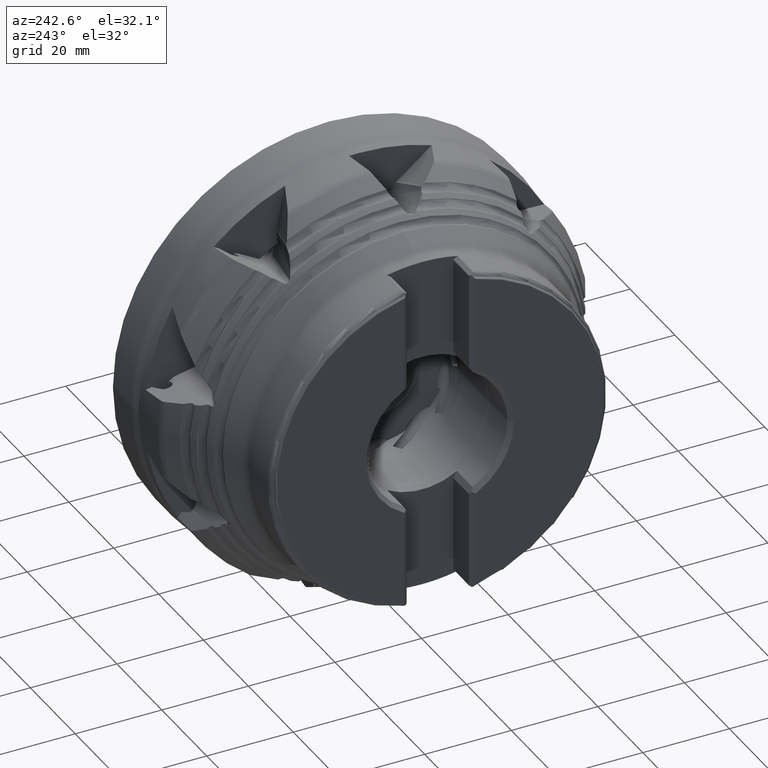
[diagram: clean part render]
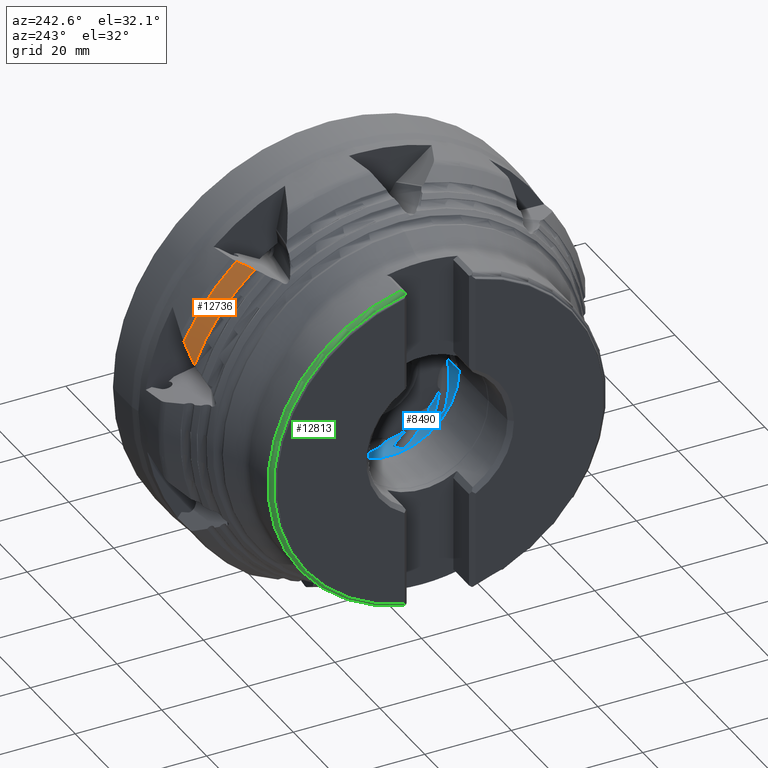
[diagram: same view with three faces highlighted in distinct colors, each labeled with its STEP entity id]
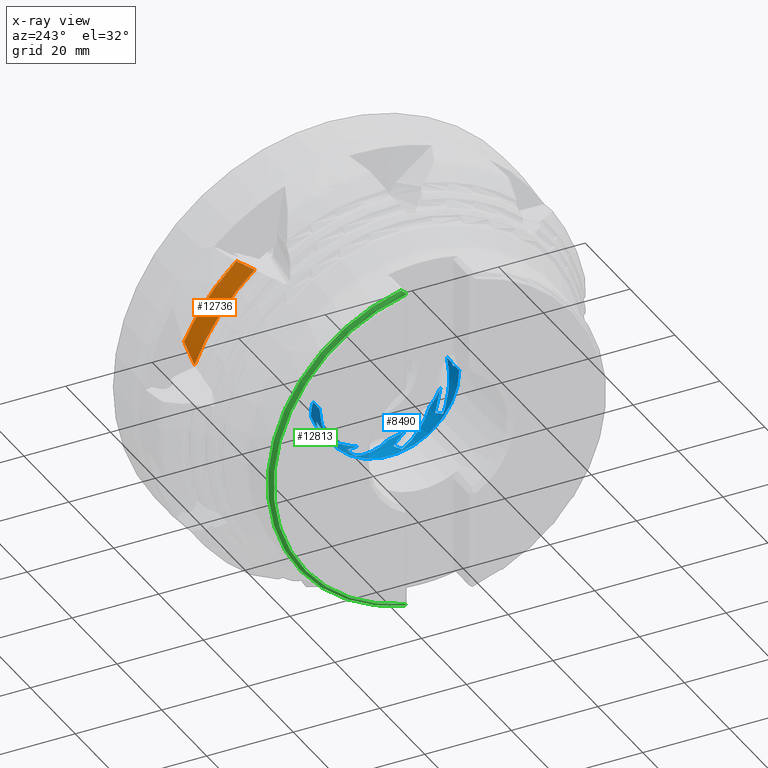
[diagram: x-ray of the same camera — body ghosted, the three highlighted faces saturated]
A machine part, auxiliary view with three faces highlighted in distinct colors.
The next image is the same camera in x-ray (body ghosted, the three faces saturated) — at least one of them is partly hidden behind the body in this view.
Their STEP definitions:

[orange] entity #12736 — the highlighted conical surface has half-angle 29.986 deg.
#2411 = CARTESIAN_POINT ( 'NONE',  ( -19.74999999999999600, 32.27830873143235400, 37.09632804884190400 ) ) ;
#2420 = CARTESIAN_POINT ( 'NONE',  ( -20.95608357414482000, 31.50575693865855700, 36.84602141440779400 ) ) ;
#2421 = CARTESIAN_POINT ( 'NONE',  ( -22.15960049143721700, 30.72996884605010600, 36.59342977770339900 ) ) ;
#2422 = CARTESIAN_POINT ( 'NONE',  ( -23.36015006379808400, 29.95043922566313600, 36.33819642054510300 ) ) ;
#2506 = CARTESIAN_POINT ( 'NONE',  ( -19.74999999999999600, 44.40297827474695000, 21.12823441751125800 ) ) ;
#2517 = CARTESIAN_POINT ( 'NONE',  ( -20.97494274066706400, 44.22609545373315100, 19.85490893478370100 ) ) ;
#2518 = CARTESIAN_POINT ( 'NONE',  ( -22.17961991986636500, 44.03104686750098300, 18.56544776923766100 ) ) ;
#2519 = CARTESIAN_POINT ( 'NONE',  ( -23.36015006379807300, 43.81435321734656400, 17.25676044493435800 ) ) ;
#2645 = B_SPLINE_CURVE_WITH_KNOTS ( 'NONE', 3,
 ( #2411, #2420, #2421, #2422 ),
 .UNSPECIFIED., .F., .F.,
 ( 4, 4 ),
 ( 2.411101941767327700E-007, 0.004362227295965006600 ),
 .UNSPECIFIED. ) ;
#2660 = B_SPLINE_CURVE_WITH_KNOTS ( 'NONE', 3,
 ( #2506, #2517, #2518, #2519 ),
 .UNSPECIFIED., .F., .F.,
 ( 4, 4 ),
 ( 2.898723007226078500E-007, 0.005326449244839337600 ),
 .UNSPECIFIED. ) ;
#4300 = CARTESIAN_POINT ( 'NONE',  ( -19.74999999999999600, 0.0000000000000000000, 0.0000000000000000000 ) ) ;
#4301 = DIRECTION ( 'NONE',  ( 1.000000000000000000, -0.0000000000000000000, -0.0000000000000000000 ) ) ;
#4302 = DIRECTION ( 'NONE',  ( 0.0000000000000000000, 0.0000000000000000000, -1.000000000000000000 ) ) ;
#4306 = CARTESIAN_POINT ( 'NONE',  ( -23.36015006379808100, 0.0000000000000000000, 0.0000000000000000000 ) ) ;
#4308 = DIRECTION ( 'NONE',  ( 1.000000000000000000, -0.0000000000000000000, -0.0000000000000000000 ) ) ;
#4309 = DIRECTION ( 'NONE',  ( 0.0000000000000000000, 0.0000000000000000000, -1.000000000000000000 ) ) ;
#5785 = FACE_OUTER_BOUND ( 'NONE', #14158, .T. ) ;
#5787 = CONICAL_SURFACE ( 'NONE', #22617, 49.17343560571049500, 0.5233591296218788000 ) ;
#6610 = DIRECTION ( 'NONE',  ( 0.0000000000000000000, 0.0000000000000000000, -1.000000000000000000 ) ) ;
#6621 = DIRECTION ( 'NONE',  ( 1.000000000000000000, -0.0000000000000000000, -0.0000000000000000000 ) ) ;
#6622 = CARTESIAN_POINT ( 'NONE',  ( -19.74999999999999600, 0.0000000000000000000, 0.0000000000000000000 ) ) ;
#7693 = CARTESIAN_POINT ( 'NONE',  ( -19.74999999999999600, 44.40297827474695000, 21.12823441751125800 ) ) ;
#7695 = CARTESIAN_POINT ( 'NONE',  ( -23.36015006379807300, 43.81435321734656400, 17.25676044493435800 ) ) ;
#7707 = CARTESIAN_POINT ( 'NONE',  ( -23.36015006379808400, 29.95043922566313600, 36.33819642054510300 ) ) ;
#7708 = CARTESIAN_POINT ( 'NONE',  ( -19.74999999999999600, 32.27830873143235400, 37.09632804884190400 ) ) ;
#9936 = EDGE_CURVE ( 'NONE', #14716, #14715, #2645, .T. ) ;
#9963 = EDGE_CURVE ( 'NONE', #14701, #14703, #2660, .T. ) ;
#10358 = EDGE_CURVE ( 'NONE', #14701, #14716, #21394, .T. ) ;
#10360 = EDGE_CURVE ( 'NONE', #14703, #14715, #21396, .T. ) ;
#12507 = ORIENTED_EDGE ( 'NONE', *, *, #10358, .F. ) ;
#12509 = ORIENTED_EDGE ( 'NONE', *, *, #9963, .T. ) ;
#12510 = ORIENTED_EDGE ( 'NONE', *, *, #10360, .T. ) ;
#12511 = ORIENTED_EDGE ( 'NONE', *, *, #9936, .F. ) ;
#12736 = ADVANCED_FACE ( 'NONE', ( #5785 ), #5787, .T. ) ;
#14158 = EDGE_LOOP ( 'NONE', ( #12507, #12509, #12510, #12511 ) ) ;
#14701 = VERTEX_POINT ( 'NONE', #7693 ) ;
#14703 = VERTEX_POINT ( 'NONE', #7695 ) ;
#14715 = VERTEX_POINT ( 'NONE', #7707 ) ;
#14716 = VERTEX_POINT ( 'NONE', #7708 ) ;
#21394 = CIRCLE ( 'NONE', #22378, 49.17343560571049500 ) ;
#21396 = CIRCLE ( 'NONE', #22379, 47.09026787891801300 ) ;
#22378 = AXIS2_PLACEMENT_3D ( 'NONE', #4300, #4301, #4302 ) ;
#22379 = AXIS2_PLACEMENT_3D ( 'NONE', #4306, #4308, #4309 ) ;
#22617 = AXIS2_PLACEMENT_3D ( 'NONE', #6622, #6621, #6610 ) ;

[blue] entity #8490 — the highlighted cylindrical surface (partial cylindrical patch) has radius 16.15 mm, axis along (1, 0, -0).
#626 = ORIENTED_EDGE ( 'NONE', *, *, #9119, .T. ) ;
#639 = ORIENTED_EDGE ( 'NONE', *, *, #8956, .F. ) ;
#821 = ORIENTED_EDGE ( 'NONE', *, *, #8942, .F. ) ;
#887 = EDGE_LOOP ( 'NONE', ( #1155, #626, #22832, #23053, #23043, #23050, #23047, #23046, #22886, #23048, #22833, #888, #996, #1027, #898, #912, #953, #821, #1083, #923, #992, #1043, #639, #1049, #1053, #1052, #1041, #1042, #1078 ) ) ;
#888 = ORIENTED_EDGE ( 'NONE', *, *, #9122, .T. ) ;
#898 = ORIENTED_EDGE ( 'NONE', *, *, #9129, .F. ) ;
#912 = ORIENTED_EDGE ( 'NONE', *, *, #9125, .T. ) ;
#923 = ORIENTED_EDGE ( 'NONE', *, *, #9131, .T. ) ;
#953 = ORIENTED_EDGE ( 'NONE', *, *, #9128, .F. ) ;
#992 = ORIENTED_EDGE ( 'NONE', *, *, #9133, .F. ) ;
#996 = ORIENTED_EDGE ( 'NONE', *, *, #8941, .F. ) ;
#1027 = ORIENTED_EDGE ( 'NONE', *, *, #9127, .T. ) ;
#1041 = ORIENTED_EDGE ( 'NONE', *, *, #8999, .F. ) ;
#1042 = ORIENTED_EDGE ( 'NONE', *, *, #9000, .F. ) ;
#1043 = ORIENTED_EDGE ( 'NONE', *, *, #9130, .T. ) ;
#1049 = ORIENTED_EDGE ( 'NONE', *, *, #9134, .T. ) ;
#1052 = ORIENTED_EDGE ( 'NONE', *, *, #9132, .T. ) ;
#1053 = ORIENTED_EDGE ( 'NONE', *, *, #9136, .F. ) ;
#1078 = ORIENTED_EDGE ( 'NONE', *, *, #9137, .F. ) ;
#1083 = ORIENTED_EDGE ( 'NONE', *, *, #8950, .F. ) ;
#1155 = ORIENTED_EDGE ( 'NONE', *, *, #9030, .F. ) ;
#5311 = VERTEX_POINT ( 'NONE', #16342 ) ;
#5322 = VERTEX_POINT ( 'NONE', #16351 ) ;
#5346 = VERTEX_POINT ( 'NONE', #16376 ) ;
#5364 = VERTEX_POINT ( 'NONE', #16394 ) ;
#5370 = VERTEX_POINT ( 'NONE', #16400 ) ;
#5372 = VERTEX_POINT ( 'NONE', #16402 ) ;
#5386 = VERTEX_POINT ( 'NONE', #16416 ) ;
#5397 = VERTEX_POINT ( 'NONE', #16427 ) ;
#5409 = VERTEX_POINT ( 'NONE', #16439 ) ;
#5411 = VERTEX_POINT ( 'NONE', #16441 ) ;
#5412 = VERTEX_POINT ( 'NONE', #16442 ) ;
#5420 = VERTEX_POINT ( 'NONE', #16450 ) ;
#7440 = CARTESIAN_POINT ( 'NONE',  ( -22.81144578818080900, 16.14999999999999500, -1.765794352093071900E-014 ) ) ;
#7444 = CARTESIAN_POINT ( 'NONE',  ( -21.24512600909631400, -15.98869009165823000, -2.276903413171053300 ) ) ;
#7447 = CARTESIAN_POINT ( 'NONE',  ( -24.96707946596180600, 7.577054700796601600, -14.26221378542390800 ) ) ;
#7452 = CARTESIAN_POINT ( 'NONE',  ( -20.24999999999998900, -12.07082049057499500, -10.72929600133731200 ) ) ;
#7475 = CARTESIAN_POINT ( 'NONE',  ( -20.24999999999999300, 15.32725314716839700, -5.088989188690983500 ) ) ;
#7478 = CARTESIAN_POINT ( 'NONE',  ( -20.24999999999998900, 8.470217905347134000, -13.75056030261811900 ) ) ;
#7480 = CARTESIAN_POINT ( 'NONE',  ( -24.96707946596196900, -3.363213659217414400, -15.79592649648804300 ) ) ;
#7528 = CARTESIAN_POINT ( 'NONE',  ( -24.96707946596169900, -12.72979697012709900, -9.938549647677110200 ) ) ;
#7535 = CARTESIAN_POINT ( 'NONE',  ( -21.90506687844372300, 16.03124950238592600, -1.954875799699524500 ) ) ;
#7557 = CARTESIAN_POINT ( 'NONE',  ( -22.37756901393073900, -16.15000000000062700, -1.137000634528731400E-012 ) ) ;
#7558 = CARTESIAN_POINT ( 'NONE',  ( -24.34967625260729900, -13.71161249990569800, -8.533122678857360200 ) ) ;
#7560 = CARTESIAN_POINT ( 'NONE',  ( -21.54501924743165700, 0.08853445914855880000, -16.14975732478798400 ) ) ;
#7567 = CARTESIAN_POINT ( 'NONE',  ( -25.64904181246357200, 16.14999999999999500, 0.0000000000000000000 ) ) ;
#7578 = CARTESIAN_POINT ( 'NONE',  ( -22.77178321478155700, -16.14163960214308300, -0.5195872924985548400 ) ) ;
#7586 = CARTESIAN_POINT ( 'NONE',  ( -25.64904181246356500, -16.15000000000000200, 1.977804580622975200E-015 ) ) ;
#7587 = CARTESIAN_POINT ( 'NONE',  ( -24.07910900153575900, 5.440347136951486600, -15.20608835399372800 ) ) ;
#7589 = CARTESIAN_POINT ( 'NONE',  ( -24.96707946596242800, 14.97193495672469700, -6.055052737309930300 ) ) ;
#8490 = ADVANCED_FACE ( 'NONE', ( #15212 ), #15214, .F. ) ;
#8925 = EDGE_CURVE ( 'NONE', #14565, #14586, #17693, .T. ) ;
#8927 = EDGE_CURVE ( 'NONE', #14566, #14452, #17694, .T. ) ;
#8935 = EDGE_CURVE ( 'NONE', #14536, #14566, #17696, .T. ) ;
#8941 = EDGE_CURVE ( 'NONE', #14488, #14460, #17699, .T. ) ;
#8942 = EDGE_CURVE ( 'NONE', #14595, #14568, #17700, .T. ) ;
#8950 = EDGE_CURVE ( 'NONE', #14455, #14595, #17702, .T. ) ;
#8956 = EDGE_CURVE ( 'NONE', #14597, #14486, #17705, .T. ) ;
#8999 = EDGE_CURVE ( 'NONE', #14543, #14483, #17713, .T. ) ;
#9000 = EDGE_CURVE ( 'NONE', #14448, #14543, #17714, .T. ) ;
#9030 = EDGE_CURVE ( 'NONE', #14594, #14575, #15638, .T. ) ;
#9091 = EDGE_CURVE ( 'NONE', #14565, #5346, #15694, .T. ) ;
#9119 = EDGE_CURVE ( 'NONE', #14594, #5370, #15714, .T. ) ;
#9120 = EDGE_CURVE ( 'NONE', #5370, #14586, #21084, .T. ) ;
#9121 = EDGE_CURVE ( 'NONE', #14452, #5409, #17741, .T. ) ;
#9122 = EDGE_CURVE ( 'NONE', #5322, #14460, #15721, .T. ) ;
#9123 = EDGE_CURVE ( 'NONE', #5346, #5409, #15722, .T. ) ;
#9124 = EDGE_CURVE ( 'NONE', #14536, #5386, #21081, .T. ) ;
#9125 = EDGE_CURVE ( 'NONE', #5311, #5411, #15723, .T. ) ;
#9126 = EDGE_CURVE ( 'NONE', #5322, #5386, #17742, .T. ) ;
#9127 = EDGE_CURVE ( 'NONE', #14488, #5397, #21079, .T. ) ;
#9128 = EDGE_CURVE ( 'NONE', #14568, #5411, #17743, .T. ) ;
#9129 = EDGE_CURVE ( 'NONE', #5311, #5397, #17744, .T. ) ;
#9130 = EDGE_CURVE ( 'NONE', #5412, #14486, #15724, .T. ) ;
#9131 = EDGE_CURVE ( 'NONE', #14455, #5372, #21076, .T. ) ;
#9132 = EDGE_CURVE ( 'NONE', #5420, #14483, #15725, .T. ) ;
#9133 = EDGE_CURVE ( 'NONE', #5412, #5372, #17745, .T. ) ;
#9134 = EDGE_CURVE ( 'NONE', #14597, #5364, #21074, .T. ) ;
#9136 = EDGE_CURVE ( 'NONE', #5420, #5364, #17746, .T. ) ;
#9137 = EDGE_CURVE ( 'NONE', #14575, #14448, #15720, .T. ) ;
#10741 = AXIS2_PLACEMENT_3D ( 'NONE', #17453, #17452, #17441 ) ;
#10984 = AXIS2_PLACEMENT_3D ( 'NONE', #19151, #19152, #19153 ) ;
#11031 = AXIS2_PLACEMENT_3D ( 'NONE', #19460, #19468, #19469 ) ;
#11032 = AXIS2_PLACEMENT_3D ( 'NONE', #19464, #19465, #19466 ) ;
#11033 = AXIS2_PLACEMENT_3D ( 'NONE', #19474, #19475, #19476 ) ;
#11034 = AXIS2_PLACEMENT_3D ( 'NONE', #19503, #19504, #19505 ) ;
#11035 = AXIS2_PLACEMENT_3D ( 'NONE', #19510, #19511, #19512 ) ;
#14448 = VERTEX_POINT ( 'NONE', #7440 ) ;
#14452 = VERTEX_POINT ( 'NONE', #7444 ) ;
#14455 = VERTEX_POINT ( 'NONE', #7447 ) ;
#14460 = VERTEX_POINT ( 'NONE', #7452 ) ;
#14483 = VERTEX_POINT ( 'NONE', #7475 ) ;
#14486 = VERTEX_POINT ( 'NONE', #7478 ) ;
#14488 = VERTEX_POINT ( 'NONE', #7480 ) ;
#14536 = VERTEX_POINT ( 'NONE', #7528 ) ;
#14543 = VERTEX_POINT ( 'NONE', #7535 ) ;
#14565 = VERTEX_POINT ( 'NONE', #7557 ) ;
#14566 = VERTEX_POINT ( 'NONE', #7558 ) ;
#14568 = VERTEX_POINT ( 'NONE', #7560 ) ;
#14575 = VERTEX_POINT ( 'NONE', #7567 ) ;
#14586 = VERTEX_POINT ( 'NONE', #7578 ) ;
#14594 = VERTEX_POINT ( 'NONE', #7586 ) ;
#14595 = VERTEX_POINT ( 'NONE', #7587 ) ;
#14597 = VERTEX_POINT ( 'NONE', #7589 ) ;
#15212 = FACE_OUTER_BOUND ( 'NONE', #887, .T. ) ;
#15214 = CYLINDRICAL_SURFACE ( 'NONE', #10741, 16.14999999999999900 ) ;
#15638 = CIRCLE ( 'NONE', #10984, 16.14999999999999900 ) ;
#15692 = VECTOR ( 'NONE', #19364, 1000.000000000000000 ) ;
#15694 = LINE ( 'NONE', #19363, #15692 ) ;
#15714 = LINE ( 'NONE', #19454, #15718 ) ;
#15718 = VECTOR ( 'NONE', #19455, 1000.000000000000000 ) ;
#15720 = LINE ( 'NONE', #19536, #15726 ) ;
#15721 = CIRCLE ( 'NONE', #11032, 16.14999999999999900 ) ;
#15722 = CIRCLE ( 'NONE', #11031, 16.14999999999999900 ) ;
#15723 = CIRCLE ( 'NONE', #11033, 16.14999999999999900 ) ;
#15724 = CIRCLE ( 'NONE', #11034, 16.14999999999999900 ) ;
#15725 = CIRCLE ( 'NONE', #11035, 16.14999999999999900 ) ;
#15726 = VECTOR ( 'NONE', #19537, 1000.000000000000000 ) ;
#16342 = CARTESIAN_POINT ( 'NONE',  ( -20.24999999999998900, -6.655891195399533400, -14.71467337031307900 ) ) ;
#16351 = CARTESIAN_POINT ( 'NONE',  ( -20.24999999999998600, -14.55711818726212500, -6.993769375814494500 ) ) ;
#16376 = CARTESIAN_POINT ( 'NONE',  ( -20.24999999999998600, -16.15000000000000200, 1.977804580622975200E-015 ) ) ;
#16394 = CARTESIAN_POINT ( 'NONE',  ( -22.77178321478096700, 15.34588894177010200, -5.032513545620860300 ) ) ;
#16400 = CARTESIAN_POINT ( 'NONE',  ( -23.81271169119185800, -16.15000000000000200, 1.977804580622975200E-015 ) ) ;
#16402 = CARTESIAN_POINT ( 'NONE',  ( -22.77178321478157100, 8.520795595858931600, -13.71927630793952200 ) ) ;
#16416 = CARTESIAN_POINT ( 'NONE',  ( -22.77178321478166700, -12.03122904628232200, -10.77367289441685500 ) ) ;
#16427 = CARTESIAN_POINT ( 'NONE',  ( -22.77178321478139000, -2.291272707449191900, -15.98663721300067800 ) ) ;
#16439 = CARTESIAN_POINT ( 'NONE',  ( -20.24999999999998600, -16.14344349101064000, -0.4601437303111677300 ) ) ;
#16441 = CARTESIAN_POINT ( 'NONE',  ( -20.24999999999998900, -2.350126430372498000, -15.97809143049521600 ) ) ;
#16442 = CARTESIAN_POINT ( 'NONE',  ( -20.24999999999998900, 4.359701258781153200, -15.55041815946381700 ) ) ;
#16450 = CARTESIAN_POINT ( 'NONE',  ( -20.24999999999998900, 13.33534104129601200, -9.109949468154400900 ) ) ;
#17441 = DIRECTION ( 'NONE',  ( -1.224606353822377000E-016, 1.000000000000000000, 0.0000000000000000000 ) ) ;
#17452 = DIRECTION ( 'NONE',  ( 1.000000000000000000, 1.224606353822377300E-016, -0.0000000000000000000 ) ) ;
#17453 = CARTESIAN_POINT ( 'NONE',  ( 0.0000000000000000000, 0.0000000000000000000, 0.0000000000000000000 ) ) ;
#17693 = B_SPLINE_CURVE_WITH_KNOTS ( 'NONE', 3,
 ( #18678, #18685, #18686, #18687 ),
 .UNSPECIFIED., .F., .F.,
 ( 4, 4 ),
 ( 0.02905559232345040300, 0.02970351827496483000 ),
 .UNSPECIFIED. ) ;
#17694 = B_SPLINE_CURVE_WITH_KNOTS ( 'NONE', 3,
 ( #18688, #18692, #18693, #18694, #18695, #18696, #18697, #18698, #18699, #18700 ),
 .UNSPECIFIED., .F., .F.,
 ( 4, 2, 2, 2, 4 ),
 ( 0.001820509059250988800, 0.003672316730614709000, 0.005524124401978429800, 0.007375932073342150000, 0.009227739744705868600 ),
 .UNSPECIFIED. ) ;
#17696 = B_SPLINE_CURVE_WITH_KNOTS ( 'NONE', 3,
 ( #18691, #18743, #18744, #18745, #18746, #18747 ),
 .UNSPECIFIED., .F., .F.,
 ( 4, 2, 4 ),
 ( 2.489796579742291600E-017, 0.0009102545296255068500, 0.001820509059250988800 ),
 .UNSPECIFIED. ) ;
#17699 = B_SPLINE_CURVE_WITH_KNOTS ( 'NONE', 3,
 ( #18765, #18784, #18785, #18786, #18787, #18788, #18789, #18790, #18791, #18792, #18793, #18794, #18795, #18796, #18797, #18798 ),
 .UNSPECIFIED., .F., .F.,
 ( 4, 2, 2, 2, 2, 2, 2, 4 ),
 ( 1.743375517060540300E-017, 0.001413308362455158200, 0.002826616724910299000, 0.004239925087365439800, 0.005653233449820580700, 0.008479850174730862300, 0.009893158537185999700, 0.01130646689964113900 ),
 .UNSPECIFIED. ) ;
#17700 = B_SPLINE_CURVE_WITH_KNOTS ( 'NONE', 3,
 ( #18769, #18799, #18800, #18801, #18802, #18803, #18804, #18805, #18806, #18807 ),
 .UNSPECIFIED., .F., .F.,
 ( 4, 2, 2, 2, 4 ),
 ( 0.002498587482569832600, 0.004008542427627171900, 0.005518497372684512400, 0.007028452317741851200, 0.008538407262799191700 ),
 .UNSPECIFIED. ) ;
#17702 = B_SPLINE_CURVE_WITH_KNOTS ( 'NONE', 3,
 ( #18834, #18850, #18851, #18852, #18853, #18854 ),
 .UNSPECIFIED., .F., .F.,
 ( 4, 2, 4 ),
 ( 3.278810933079294400E-017, 0.001249293741284932600, 0.002498587482569832600 ),
 .UNSPECIFIED. ) ;
#17705 = B_SPLINE_CURVE_WITH_KNOTS ( 'NONE', 3,
 ( #18872, #18891, #18892, #18893, #18894, #18895, #18896, #18897, #18898, #18899, #18900, #18901, #18902, #18903, #18904, #18905 ),
 .UNSPECIFIED., .F., .F.,
 ( 4, 2, 2, 2, 2, 2, 2, 4 ),
 ( 5.743611534694584500E-017, 0.001413308362455174900, 0.002826616724910292100, 0.004239925087365409500, 0.005653233449820526900, 0.008479850174730758200, 0.009893158537185874800, 0.01130646689964099000 ),
 .UNSPECIFIED. ) ;
#17713 = B_SPLINE_CURVE_WITH_KNOTS ( 'NONE', 3,
 ( #19026, #19043, #19044, #19045, #19046, #19047 ),
 .UNSPECIFIED., .F., .F.,
 ( 4, 2, 4 ),
 ( 0.007686223339380179200, 0.009493093333152697500, 0.01129996332692521600 ),
 .UNSPECIFIED. ) ;
#17714 = B_SPLINE_CURVE_WITH_KNOTS ( 'NONE', 3,
 ( #19042, #19049, #19050, #19051 ),
 .UNSPECIFIED., .F., .F.,
 ( 4, 4 ),
 ( 0.005512990380089651300, 0.007686223339380179200 ),
 .UNSPECIFIED. ) ;
#17741 = B_SPLINE_CURVE_WITH_KNOTS ( 'NONE', 3,
 ( #19456, #19461, #19462, #19463 ),
 .UNSPECIFIED., .F., .F.,
 ( 4, 4 ),
 ( 0.009227739744705868600, 0.01130646689964108200 ),
 .UNSPECIFIED. ) ;
#17742 = B_SPLINE_CURVE_WITH_KNOTS ( 'NONE', 3,
 ( #19470, #19479, #19480, #19481, #19482, #19483, #19484, #19485 ),
 .UNSPECIFIED., .F., .F.,
 ( 4, 2, 2, 4 ),
 ( 0.02445421094437197000, 0.02707886460966819600, 0.02839119144231630500, 0.02970351827496441700 ),
 .UNSPECIFIED. ) ;
#17743 = B_SPLINE_CURVE_WITH_KNOTS ( 'NONE', 3,
 ( #19486, #19491, #19492, #19493, #19494, #19495 ),
 .UNSPECIFIED., .F., .F.,
 ( 4, 2, 4 ),
 ( 0.008538407262799191700, 0.009922437081220095900, 0.01130646689964100200 ),
 .UNSPECIFIED. ) ;
#17744 = B_SPLINE_CURVE_WITH_KNOTS ( 'NONE', 3,
 ( #19490, #19496, #19497, #19498, #19499, #19500, #19501, #19502 ),
 .UNSPECIFIED., .F., .F.,
 ( 4, 2, 2, 4 ),
 ( 0.02445421094437211200, 0.02707886460966828200, 0.02839119144231636700, 0.02970351827496445200 ),
 .UNSPECIFIED. ) ;
#17745 = B_SPLINE_CURVE_WITH_KNOTS ( 'NONE', 3,
 ( #19506, #19515, #19516, #19517, #19518, #19519, #19520, #19521 ),
 .UNSPECIFIED., .F., .F.,
 ( 4, 2, 2, 4 ),
 ( 0.02445421094437195300, 0.02707886460966828200, 0.02839119144231644700, 0.02970351827496460800 ),
 .UNSPECIFIED. ) ;
#17746 = B_SPLINE_CURVE_WITH_KNOTS ( 'NONE', 3,
 ( #19513, #19529, #19530, #19531, #19532, #19533, #19534, #19535 ),
 .UNSPECIFIED., .F., .F.,
 ( 4, 2, 2, 4 ),
 ( 0.02445421094437183500, 0.02707886460966811900, 0.02839119144231626300, 0.02970351827496440400 ),
 .UNSPECIFIED. ) ;
#18678 = CARTESIAN_POINT ( 'NONE',  ( -22.37756901393073900, -16.15000000000062700, -1.137000634528731400E-012 ) ) ;
#18685 = CARTESIAN_POINT ( 'NONE',  ( -22.50227493808807500, -16.14999999999999100, -0.1781306903785487600 ) ) ;
#18686 = CARTESIAN_POINT ( 'NONE',  ( -22.63283602751283400, -16.14703593230573700, -0.3519434376214212200 ) ) ;
#18687 = CARTESIAN_POINT ( 'NONE',  ( -22.77178321478155700, -16.14163960214308300, -0.5195872924985548400 ) ) ;
#18688 = CARTESIAN_POINT ( 'NONE',  ( -24.34967625260729900, -13.71161249990569800, -8.533122678857360200 ) ) ;
#18691 = CARTESIAN_POINT ( 'NONE',  ( -24.96707946596169900, -12.72979697012709900, -9.938549647677110200 ) ) ;
#18692 = CARTESIAN_POINT ( 'NONE',  ( -24.10990732662633500, -14.01230709690334700, -8.049945775159177000 ) ) ;
#18693 = CARTESIAN_POINT ( 'NONE',  ( -23.84986095263154800, -14.28490039145445900, -7.554941338087683500 ) ) ;
#18694 = CARTESIAN_POINT ( 'NONE',  ( -23.32800420615423300, -14.77347436497907100, -6.548280156119473000 ) ) ;
#18695 = CARTESIAN_POINT ( 'NONE',  ( -23.06580869451901700, -14.98976871034279400, -6.036388840508997200 ) ) ;
#18696 = CARTESIAN_POINT ( 'NONE',  ( -22.54773762814615200, -15.36915191003851100, -4.992026220839909100 ) ) ;
#18697 = CARTESIAN_POINT ( 'NONE',  ( -22.29186409243115100, -15.53210149145878900, -4.459508215498285500 ) ) ;
#18698 = CARTESIAN_POINT ( 'NONE',  ( -21.77735371470547000, -15.80267881502251200, -3.377681532399352100 ) ) ;
#18699 = CARTESIAN_POINT ( 'NONE',  ( -21.51845817041635900, -15.91025042716003000, -2.827716187793201100 ) ) ;
#18700 = CARTESIAN_POINT ( 'NONE',  ( -21.24512600909631400, -15.98869009165823000, -2.276903413171053300 ) ) ;
#18743 = CARTESIAN_POINT ( 'NONE',  ( -24.88629237301147500, -12.91156972261356700, -9.705725914246585300 ) ) ;
#18744 = CARTESIAN_POINT ( 'NONE',  ( -24.78985010557360600, -13.08277269073645900, -9.473373911101823800 ) ) ;
#18745 = CARTESIAN_POINT ( 'NONE',  ( -24.58061031484905000, -13.40893483881042900, -9.005788195686156100 ) ) ;
#18746 = CARTESIAN_POINT ( 'NONE',  ( -24.46753446991174000, -13.56380631939158100, -8.770627886338111500 ) ) ;
#18747 = CARTESIAN_POINT ( 'NONE',  ( -24.34967625260729900, -13.71161249990569800, -8.533122678857360200 ) ) ;
#18765 = CARTESIAN_POINT ( 'NONE',  ( -24.96707946596196900, -3.363213659217414400, -15.79592649648804300 ) ) ;
#18769 = CARTESIAN_POINT ( 'NONE',  ( -24.07910900153575900, 5.440347136951486600, -15.20608835399372800 ) ) ;
#18784 = CARTESIAN_POINT ( 'NONE',  ( -24.84164523813970900, -3.811778217154513800, -15.70041969296935100 ) ) ;
#18785 = CARTESIAN_POINT ( 'NONE',  ( -24.67980586465593300, -4.240651354229437500, -15.58943989238097800 ) ) ;
#18786 = CARTESIAN_POINT ( 'NONE',  ( -24.32942435110702200, -5.078124432475995300, -15.33709269433349400 ) ) ;
#18787 = CARTESIAN_POINT ( 'NONE',  ( -24.13955067214465400, -5.486174756166293200, -15.19571651829647900 ) ) ;
#18788 = CARTESIAN_POINT ( 'NONE',  ( -23.74856486684010200, -6.288112144651478300, -14.88178617021193700 ) ) ;
#18789 = CARTESIAN_POINT ( 'NONE',  ( -23.54817586953907600, -6.680021512989384300, -14.70988145273484800 ) ) ;
#18790 = CARTESIAN_POINT ( 'NONE',  ( -23.14915302606598500, -7.444809055083281300, -14.33799560262394700 ) ) ;
#18791 = CARTESIAN_POINT ( 'NONE',  ( -22.95006939743147000, -7.818502095648539400, -14.13765685749718400 ) ) ;
#18792 = CARTESIAN_POINT ( 'NONE',  ( -22.35774509317446500, -8.915205140313363000, -13.49299385111107300 ) ) ;
#18793 = CARTESIAN_POINT ( 'NONE',  ( -21.97250644729071200, -9.614867611285543300, -13.00394472696202400 ) ) ;
#18794 = CARTESIAN_POINT ( 'NONE',  ( -21.36883506557505500, -10.60093177590098700, -12.19115191004527600 ) ) ;
#18795 = CARTESIAN_POINT ( 'NONE',  ( -21.16201675503602400, -10.91940789573118500, -11.90647730143641100 ) ) ;
#18796 = CARTESIAN_POINT ( 'NONE',  ( -20.72776972903218600, -11.52145876960999300, -11.32491317155033200 ) ) ;
#18797 = CARTESIAN_POINT ( 'NONE',  ( -20.50007314066401800, -11.80599624794515600, -11.02723222137820300 ) ) ;
#18798 = CARTESIAN_POINT ( 'NONE',  ( -20.24999999999998900, -12.07082049057499500, -10.72929600133731200 ) ) ;
#18799 = CARTESIAN_POINT ( 'NONE',  ( -23.87366468087661500, 5.006463720586494600, -15.36132067587959100 ) ) ;
#18800 = CARTESIAN_POINT ( 'NONE',  ( -23.65978874356619200, 4.567892930990612200, -15.49721987945537400 ) ) ;
#18801 = CARTESIAN_POINT ( 'NONE',  ( -23.23352364789906200, 3.688239878565891900, -15.72979200178238200 ) ) ;
#18802 = CARTESIAN_POINT ( 'NONE',  ( -23.02036285920046800, 3.245685279203550400, -15.82697829854989800 ) ) ;
#18803 = CARTESIAN_POINT ( 'NONE',  ( -22.59790633547796900, 2.353388180903623900, -15.98403200273295100 ) ) ;
#18804 = CARTESIAN_POINT ( 'NONE',  ( -22.38861309256227400, 1.903637045248425700, -16.04384746494159900 ) ) ;
#18805 = CARTESIAN_POINT ( 'NONE',  ( -21.96990180731270200, 0.9987411435936353100, -16.12548887961070700 ) ) ;
#18806 = CARTESIAN_POINT ( 'NONE',  ( -21.76048728125711700, 0.5435872264077956700, -16.14726268354830200 ) ) ;
#18807 = CARTESIAN_POINT ( 'NONE',  ( -21.54501924743165700, 0.08853445914855880000, -16.14975732478798400 ) ) ;
#18834 = CARTESIAN_POINT ( 'NONE',  ( -24.96707946596180600, 7.577054700796601600, -14.26221378542390800 ) ) ;
#18850 = CARTESIAN_POINT ( 'NONE',  ( -24.85620189676045700, 7.219045300956921100, -14.45241264562876200 ) ) ;
#18851 = CARTESIAN_POINT ( 'NONE',  ( -24.71652909837148100, 6.865156890896392900, -14.62335785775813700 ) ) ;
#18852 = CARTESIAN_POINT ( 'NONE',  ( -24.41340867598228600, 6.155162605482791700, -14.93609545606699900 ) ) ;
#18853 = CARTESIAN_POINT ( 'NONE',  ( -24.24908778455981600, 5.799329925336283300, -15.07765354949049600 ) ) ;
#18854 = CARTESIAN_POINT ( 'NONE',  ( -24.07910900153575900, 5.440347136951486600, -15.20608835399372800 ) ) ;
#18872 = CARTESIAN_POINT ( 'NONE',  ( -24.96707946596242800, 14.97193495672469700, -6.055052737309930300 ) ) ;
#18891 = CARTESIAN_POINT ( 'NONE',  ( -24.84164523813971600, 14.79998669810240700, -6.480218009306858200 ) ) ;
#18892 = CARTESIAN_POINT ( 'NONE',  ( -24.67980586465593300, 14.61621989135187000, -6.883304159626927500 ) ) ;
#18893 = CARTESIAN_POINT ( 'NONE',  ( -24.32942435110703600, 14.22228074038117300, -7.664234508942825200 ) ) ;
#18894 = CARTESIAN_POINT ( 'NONE',  ( -24.13955067214467200, 14.01219519102348700, -8.041535915997815900 ) ) ;
#18895 = CARTESIAN_POINT ( 'NONE',  ( -23.74856486684012700, 13.56377918421059000, -8.776776640749156800 ) ) ;
#18896 = CARTESIAN_POINT ( 'NONE',  ( -23.54817586953909700, 13.32643173803731300, -9.132881084244191400 ) ) ;
#18897 = CARTESIAN_POINT ( 'NONE',  ( -23.14915302606601300, 12.82739170662559800, -9.821472484933526200 ) ) ;
#18898 = CARTESIAN_POINT ( 'NONE',  ( -22.95006939743150600, 12.56520544169505800, -10.15469983052155500 ) ) ;
#18899 = CARTESIAN_POINT ( 'NONE',  ( -22.35774509317450800, 11.73989582977805700, -11.12279693539132800 ) ) ;
#18900 = CARTESIAN_POINT ( 'NONE',  ( -21.97250644729076200, 11.13678134764600500, -11.72690747209831000 ) ) ;
#18901 = CARTESIAN_POINT ( 'NONE',  ( -21.36883506557511200, 10.16510843470564400, -12.55685111490074300 ) ) ;
#18902 = CARTESIAN_POINT ( 'NONE',  ( -21.16201675503610200, 9.829455875222981500, -12.82105563984579200 ) ) ;
#18903 = CARTESIAN_POINT ( 'NONE',  ( -20.72776972903226400, 9.152181974125548800, -13.31297245679824200 ) ) ;
#18904 = CARTESIAN_POINT ( 'NONE',  ( -20.50007314066410700, 8.809614051881151700, -13.54149541696170500 ) ) ;
#18905 = CARTESIAN_POINT ( 'NONE',  ( -20.24999999999998900, 8.470217905347134000, -13.75056030261811900 ) ) ;
#19026 = CARTESIAN_POINT ( 'NONE',  ( -21.90506687844372300, 16.03124950238592600, -1.954875799699524500 ) ) ;
#19042 = CARTESIAN_POINT ( 'NONE',  ( -22.81144578818080900, 16.14999999999999500, -1.765794352093071900E-014 ) ) ;
#19043 = CARTESIAN_POINT ( 'NONE',  ( -21.65309534300066500, 15.96535779948926300, -2.495230501228824100 ) ) ;
#19044 = CARTESIAN_POINT ( 'NONE',  ( -21.39745723705382800, 15.87148013474488900, -3.034912851316548600 ) ) ;
#19045 = CARTESIAN_POINT ( 'NONE',  ( -20.85605537405643200, 15.63308019336133000, -4.089178566732139900 ) ) ;
#19046 = CARTESIAN_POINT ( 'NONE',  ( -20.57188204097125000, 15.48892995964395200, -4.602043482784312200 ) ) ;
#19047 = CARTESIAN_POINT ( 'NONE',  ( -20.24999999999999300, 15.32725314716839700, -5.088989188690983500 ) ) ;
#19049 = CARTESIAN_POINT ( 'NONE',  ( -22.50741443836682600, 16.14999999999998400, -0.6519973337299267400 ) ) ;
#19050 = CARTESIAN_POINT ( 'NONE',  ( -22.20812844209555000, 16.11050148010005500, -1.304958179107971800 ) ) ;
#19051 = CARTESIAN_POINT ( 'NONE',  ( -21.90506687844372300, 16.03124950238592600, -1.954875799699524500 ) ) ;
#19151 = CARTESIAN_POINT ( 'NONE',  ( -25.64904181246356900, -3.140997957299871000E-015, 0.0000000000000000000 ) ) ;
#19152 = DIRECTION ( 'NONE',  ( 1.000000000000000000, 1.224606353822377300E-016, -0.0000000000000000000 ) ) ;
#19153 = DIRECTION ( 'NONE',  ( -2.148264366534745800E-016, 1.000000000000000000, 0.0000000000000000000 ) ) ;
#19363 = CARTESIAN_POINT ( 'NONE',  ( 1.977739261423138800E-015, -16.14999999999999900, 1.977804580622975200E-015 ) ) ;
#19364 = DIRECTION ( 'NONE',  ( 1.000000000000000000, 1.224606353822377300E-016, -0.0000000000000000000 ) ) ;
#19450 = CARTESIAN_POINT ( 'NONE',  ( -23.81271169119185800, -16.15000000000000200, 1.977804580622975200E-015 ) ) ;
#19454 = CARTESIAN_POINT ( 'NONE',  ( 1.977739261423138800E-015, -16.14999999999999900, 1.977804580622975200E-015 ) ) ;
#19455 = DIRECTION ( 'NONE',  ( 1.000000000000000000, 1.224606353822377300E-016, -0.0000000000000000000 ) ) ;
#19456 = CARTESIAN_POINT ( 'NONE',  ( -21.24512600909631400, -15.98869009165823000, -2.276903413171053300 ) ) ;
#19457 = CARTESIAN_POINT ( 'NONE',  ( -23.46361621420373200, -16.14999999999999900, -0.1732331304365146400 ) ) ;
#19458 = CARTESIAN_POINT ( 'NONE',  ( -23.11661011425678000, -16.14721296023686700, -0.3464438399500969800 ) ) ;
#19459 = CARTESIAN_POINT ( 'NONE',  ( -22.77178321478155700, -16.14163960214308300, -0.5195872924985548400 ) ) ;
#19460 = CARTESIAN_POINT ( 'NONE',  ( -20.24999999999998900, -2.479827866490312800E-015, 0.0000000000000000000 ) ) ;
#19461 = CARTESIAN_POINT ( 'NONE',  ( -20.93829987653434400, -16.07674170907935400, -1.658594347063196100 ) ) ;
#19462 = CARTESIAN_POINT ( 'NONE',  ( -20.61781345248342800, -16.12673871788294700, -1.046205309017292300 ) ) ;
#19463 = CARTESIAN_POINT ( 'NONE',  ( -20.24999999999998600, -16.14344349101064000, -0.4601437303111677300 ) ) ;
#19464 = CARTESIAN_POINT ( 'NONE',  ( -20.24999999999998900, -2.479827866490312800E-015, 0.0000000000000000000 ) ) ;
#19465 = DIRECTION ( 'NONE',  ( 1.000000000000000000, 1.224606353822377300E-016, -0.0000000000000000000 ) ) ;
#19466 = DIRECTION ( 'NONE',  ( -2.148264366534745800E-016, 1.000000000000000000, 0.0000000000000000000 ) ) ;
#19467 = CARTESIAN_POINT ( 'NONE',  ( -24.96707946596169900, -12.72979697012709900, -9.938549647677110200 ) ) ;
#19468 = DIRECTION ( 'NONE',  ( 1.000000000000000000, 1.224606353822377300E-016, -0.0000000000000000000 ) ) ;
#19469 = DIRECTION ( 'NONE',  ( -2.148264366534745800E-016, 1.000000000000000000, 0.0000000000000000000 ) ) ;
#19470 = CARTESIAN_POINT ( 'NONE',  ( -20.24999999999998600, -14.55711818726212500, -6.993769375814494500 ) ) ;
#19471 = CARTESIAN_POINT ( 'NONE',  ( -24.22651436593913500, -12.50637216753631300, -10.22472343317872800 ) ) ;
#19472 = CARTESIAN_POINT ( 'NONE',  ( -23.49447161128749400, -12.27342794098478500, -10.50320335209097600 ) ) ;
#19473 = CARTESIAN_POINT ( 'NONE',  ( -22.77178321478166700, -12.03122904628232200, -10.77367289441685500 ) ) ;
#19474 = CARTESIAN_POINT ( 'NONE',  ( -20.24999999999998900, -2.479827866490312800E-015, 0.0000000000000000000 ) ) ;
#19475 = DIRECTION ( 'NONE',  ( 1.000000000000000000, 1.224606353822377300E-016, -0.0000000000000000000 ) ) ;
#19476 = DIRECTION ( 'NONE',  ( -2.148264366534745800E-016, 1.000000000000000000, 0.0000000000000000000 ) ) ;
#19477 = CARTESIAN_POINT ( 'NONE',  ( -24.96707946596180600, 7.577054700796601600, -14.26221378542390800 ) ) ;
#19478 = CARTESIAN_POINT ( 'NONE',  ( -24.96707946596196900, -3.363213659217414400, -15.79592649648804300 ) ) ;
#19479 = CARTESIAN_POINT ( 'NONE',  ( -20.61276938992818200, -14.21643959165743000, -7.702871765898757800 ) ) ;
#19480 = CARTESIAN_POINT ( 'NONE',  ( -20.97340207892285200, -13.82420497997642400, -8.384963856533319800 ) ) ;
#19481 = CARTESIAN_POINT ( 'NONE',  ( -21.57231789421341300, -13.17836548828702400, -9.343533785890088000 ) ) ;
#19482 = CARTESIAN_POINT ( 'NONE',  ( -21.78198744976441100, -12.95366955228457500, -9.652175049788812800 ) ) ;
#19483 = CARTESIAN_POINT ( 'NONE',  ( -22.24129431949197100, -12.49354773379486300, -10.24076672348996900 ) ) ;
#19484 = CARTESIAN_POINT ( 'NONE',  ( -22.49035580514118500, -12.25786061831415800, -10.52058776932019800 ) ) ;
#19485 = CARTESIAN_POINT ( 'NONE',  ( -22.77178321478166700, -12.03122904628232200, -10.77367289441685500 ) ) ;
#19486 = CARTESIAN_POINT ( 'NONE',  ( -21.54501924743165700, 0.08853445914855880000, -16.14975732478798400 ) ) ;
#19487 = CARTESIAN_POINT ( 'NONE',  ( -24.22651436593919200, -3.008111367200162300, -15.87153363983589200 ) ) ;
#19488 = CARTESIAN_POINT ( 'NONE',  ( -23.49447161128738100, -2.650662295470323400, -15.93512797166352400 ) ) ;
#19489 = CARTESIAN_POINT ( 'NONE',  ( -22.77178321478139000, -2.291272707449191900, -15.98663721300067800 ) ) ;
#19490 = CARTESIAN_POINT ( 'NONE',  ( -20.24999999999998900, -6.655891195399533400, -14.71467337031307900 ) ) ;
#19491 = CARTESIAN_POINT ( 'NONE',  ( -21.34752051761383400, -0.3285684490563087800, -16.15204392140021700 ) ) ;
#19492 = CARTESIAN_POINT ( 'NONE',  ( -21.14446320420765000, -0.7463477207140869500, -16.13794308864940100 ) ) ;
#19493 = CARTESIAN_POINT ( 'NONE',  ( -20.71830662973164300, -1.563377240828965700, -16.07936857141970700 ) ) ;
#19494 = CARTESIAN_POINT ( 'NONE',  ( -20.49489254621265400, -1.963919616023708200, -16.03489639033282900 ) ) ;
#19495 = CARTESIAN_POINT ( 'NONE',  ( -20.24999999999998900, -2.350126430372498000, -15.97809143049521600 ) ) ;
#19496 = CARTESIAN_POINT ( 'NONE',  ( -20.61276938992819700, -5.939114020001745200, -15.03889333569939300 ) ) ;
#19497 = CARTESIAN_POINT ( 'NONE',  ( -20.97340207892287000, -5.200204530799508600, -15.30928264294663600 ) ) ;
#19498 = CARTESIAN_POINT ( 'NONE',  ( -21.57231789421341300, -4.089305903435459300, -15.62845218756713300 ) ) ;
#19499 = CARTESIAN_POINT ( 'NONE',  ( -21.78198744976441100, -3.718788049997283200, -15.72045334908467300 ) ) ;
#19500 = CARTESIAN_POINT ( 'NONE',  ( -22.24129431949195600, -2.987974852765694400, -15.87558012611790500 ) ) ;
#19501 = CARTESIAN_POINT ( 'NONE',  ( -22.49035580514117100, -2.627562546447759200, -15.93843872575014400 ) ) ;
#19502 = CARTESIAN_POINT ( 'NONE',  ( -22.77178321478139000, -2.291272707449191900, -15.98663721300067800 ) ) ;
#19503 = CARTESIAN_POINT ( 'NONE',  ( -20.24999999999998900, -2.479827866490312800E-015, 0.0000000000000000000 ) ) ;
#19504 = DIRECTION ( 'NONE',  ( 1.000000000000000000, 1.224606353822377300E-016, -0.0000000000000000000 ) ) ;
#19505 = DIRECTION ( 'NONE',  ( -2.148264366534745800E-016, 1.000000000000000000, 0.0000000000000000000 ) ) ;
#19506 = CARTESIAN_POINT ( 'NONE',  ( -20.24999999999998900, 4.359701258781153200, -15.55041815946381700 ) ) ;
#19507 = CARTESIAN_POINT ( 'NONE',  ( -24.22651436593915300, 7.897678173282969300, -14.09187686396566400 ) ) ;
#19508 = CARTESIAN_POINT ( 'NONE',  ( -23.49447161128745500, 8.212377696924692200, -13.91082911407421800 ) ) ;
#19509 = CARTESIAN_POINT ( 'NONE',  ( -22.77178321478157100, 8.520795595858931600, -13.71927630793952200 ) ) ;
#19510 = CARTESIAN_POINT ( 'NONE',  ( -20.24999999999998900, -2.479827866490312800E-015, 0.0000000000000000000 ) ) ;
#19511 = DIRECTION ( 'NONE',  ( 1.000000000000000000, 1.224606353822377300E-016, -0.0000000000000000000 ) ) ;
#19512 = DIRECTION ( 'NONE',  ( -2.148264366534745800E-016, 1.000000000000000000, 0.0000000000000000000 ) ) ;
#19513 = CARTESIAN_POINT ( 'NONE',  ( -20.24999999999998900, 13.33534104129601200, -9.109949468154400900 ) ) ;
#19514 = CARTESIAN_POINT ( 'NONE',  ( -24.96707946596242800, 14.97193495672469700, -6.055052737309930300 ) ) ;
#19515 = CARTESIAN_POINT ( 'NONE',  ( -20.61276938992811800, 5.117189007512549500, -15.33804957504433600 ) ) ;
#19516 = CARTESIAN_POINT ( 'NONE',  ( -20.97340207892280600, 5.857029412174105300, -15.07021793700086000 ) ) ;
#19517 = CARTESIAN_POINT ( 'NONE',  ( -21.57231789421337000, 6.913185361206253700, -14.60064411978278400 ) ) ;
#19518 = CARTESIAN_POINT ( 'NONE',  ( -21.78198744976438300, 7.256155710609208500, -14.43295681296606100 ) ) ;
#19519 = CARTESIAN_POINT ( 'NONE',  ( -22.24129431949195600, 7.915704669514087600, -14.08203315031543600 ) ) ;
#19520 = CARTESIAN_POINT ( 'NONE',  ( -22.49035580514113200, 8.232201243006441500, -13.89851706638625300 ) ) ;
#19521 = CARTESIAN_POINT ( 'NONE',  ( -22.77178321478157100, 8.520795595858931600, -13.71927630793952200 ) ) ;
#19522 = CARTESIAN_POINT ( 'NONE',  ( -24.22651436593934100, 15.10805632357096500, -5.718474289679756200 ) ) ;
#19523 = CARTESIAN_POINT ( 'NONE',  ( -23.49447161128723100, 15.23275489451711800, -5.377498712364865900 ) ) ;
#19524 = CARTESIAN_POINT ( 'NONE',  ( -22.77178321478096700, 15.34588894177010200, -5.032513545620860300 ) ) ;
#19529 = CARTESIAN_POINT ( 'NONE',  ( -20.61276938992809300, 13.77910242719087300, -8.460361954792919200 ) ) ;
#19530 = CARTESIAN_POINT ( 'NONE',  ( -20.97340207892278100, 14.17369419956035500, -7.779630771516342400 ) ) ;
#19531 = CARTESIAN_POINT ( 'NONE',  ( -21.57231789421334900, 14.68092036384249300, -6.741032400267696000 ) ) ;
#19532 = CARTESIAN_POINT ( 'NONE',  ( -21.78198744976434800, 14.83586357103370200, -6.392119379613080600 ) ) ;
#19533 = CARTESIAN_POINT ( 'NONE',  ( -22.24129431949191000, 15.11553800367005400, -5.699346359114902500 ) ) ;
#19534 = CARTESIAN_POINT ( 'NONE',  ( -22.49035580514117100, 15.24002658013224100, -5.355324806848749100 ) ) ;
#19535 = CARTESIAN_POINT ( 'NONE',  ( -22.77178321478096700, 15.34588894177010200, -5.032513545620860300 ) ) ;
#19536 = CARTESIAN_POINT ( 'NONE',  ( -1.977739261423138800E-015, 16.14999999999999900, 0.0000000000000000000 ) ) ;
#19537 = DIRECTION ( 'NONE',  ( 1.000000000000000000, 1.224606353822377300E-016, -0.0000000000000000000 ) ) ;
#21074 =( BOUNDED_CURVE ( )  B_SPLINE_CURVE ( 3, ( #19514, #19522, #19523, #19524 ),
 .UNSPECIFIED., .F., .T. ) 
 B_SPLINE_CURVE_WITH_KNOTS ( ( 4, 4 ),
 ( 5.026203875111418600, 5.093632971316880600 ),
 .UNSPECIFIED. ) 
 CURVE ( )  GEOMETRIC_REPRESENTATION_ITEM ( )  RATIONAL_B_SPLINE_CURVE ( ( 1.000000000000000000, 0.9996211456368385700, 0.9996211456368385700, 1.000000000000000000 ) ) 
 REPRESENTATION_ITEM ( '' )  );
#21076 =( BOUNDED_CURVE ( )  B_SPLINE_CURVE ( 3, ( #19477, #19507, #19508, #19509 ),
 .UNSPECIFIED., .F., .T. ) 
 B_SPLINE_CURVE_WITH_KNOTS ( ( 4, 4 ),
 ( 5.026203875111438200, 5.093632971316862000 ),
 .UNSPECIFIED. ) 
 CURVE ( )  GEOMETRIC_REPRESENTATION_ITEM ( )  RATIONAL_B_SPLINE_CURVE ( ( 1.000000000000000000, 0.9996211456368391300, 0.9996211456368391300, 1.000000000000000000 ) ) 
 REPRESENTATION_ITEM ( '' )  );
#21079 =( BOUNDED_CURVE ( )  B_SPLINE_CURVE ( 3, ( #19478, #19487, #19488, #19489 ),
 .UNSPECIFIED., .F., .T. ) 
 B_SPLINE_CURVE_WITH_KNOTS ( ( 4, 4 ),
 ( 5.026203875111431100, 5.093632971316865500 ),
 .UNSPECIFIED. ) 
 CURVE ( )  GEOMETRIC_REPRESENTATION_ITEM ( )  RATIONAL_B_SPLINE_CURVE ( ( 1.000000000000000000, 0.9996211456368390100, 0.9996211456368390100, 1.000000000000000000 ) ) 
 REPRESENTATION_ITEM ( '' )  );
#21081 =( BOUNDED_CURVE ( )  B_SPLINE_CURVE ( 3, ( #19467, #19471, #19472, #19473 ),
 .UNSPECIFIED., .F., .T. ) 
 B_SPLINE_CURVE_WITH_KNOTS ( ( 4, 4 ),
 ( 5.026203875111439100, 5.093632971316857500 ),
 .UNSPECIFIED. ) 
 CURVE ( )  GEOMETRIC_REPRESENTATION_ITEM ( )  RATIONAL_B_SPLINE_CURVE ( ( 1.000000000000000000, 0.9996211456368391300, 0.9996211456368391300, 1.000000000000000000 ) ) 
 REPRESENTATION_ITEM ( '' )  );
#21084 =( BOUNDED_CURVE ( )  B_SPLINE_CURVE ( 3, ( #19450, #19457, #19458, #19459 ),
 .UNSPECIFIED., .F., .T. ) 
 B_SPLINE_CURVE_WITH_KNOTS ( ( 4, 4 ),
 ( 5.061454830783562300, 5.093632971316861100 ),
 .UNSPECIFIED. ) 
 CURVE ( )  GEOMETRIC_REPRESENTATION_ITEM ( )  RATIONAL_B_SPLINE_CURVE ( ( 1.000000000000000000, 0.9999137158006231600, 0.9999137158006231600, 1.000000000000000000 ) ) 
 REPRESENTATION_ITEM ( '' )  );
#22832 = ORIENTED_EDGE ( 'NONE', *, *, #9120, .T. ) ;
#22833 = ORIENTED_EDGE ( 'NONE', *, *, #9126, .F. ) ;
#22886 = ORIENTED_EDGE ( 'NONE', *, *, #8935, .F. ) ;
#23043 = ORIENTED_EDGE ( 'NONE', *, *, #9091, .T. ) ;
#23046 = ORIENTED_EDGE ( 'NONE', *, *, #8927, .F. ) ;
#23047 = ORIENTED_EDGE ( 'NONE', *, *, #9121, .F. ) ;
#23048 = ORIENTED_EDGE ( 'NONE', *, *, #9124, .T. ) ;
#23050 = ORIENTED_EDGE ( 'NONE', *, *, #9123, .T. ) ;
#23053 = ORIENTED_EDGE ( 'NONE', *, *, #8925, .F. ) ;

[green] entity #12813 — the highlighted toroidal blend (fillet) surface has major radius 38 mm and minor (blend) radius 1 mm.
#2801 = B_SPLINE_CURVE_WITH_KNOTS ( 'NONE', 3,
 ( #4486, #4499, #4500, #4501 ),
 .UNSPECIFIED., .F., .F.,
 ( 4, 4 ),
 ( 1.043279006546705200E-006, 0.0003398727336485076300 ),
 .UNSPECIFIED. ) ;
#2802 = B_SPLINE_CURVE_WITH_KNOTS ( 'NONE', 3,
 ( #4504, #4509, #4510, #4511, #4512, #4513, #4514, #4515 ),
 .UNSPECIFIED., .F., .F.,
 ( 4, 2, 2, 4 ),
 ( 0.0000000000000000000, 0.0002976933538340615800, 0.0005953867076681231500, 0.001190773415336235900 ),
 .UNSPECIFIED. ) ;
#2803 = B_SPLINE_CURVE_WITH_KNOTS ( 'NONE', 3,
 ( #4507, #4516, #4517, #4518 ),
 .UNSPECIFIED., .F., .F.,
 ( 4, 4 ),
 ( 0.0007084118307387549600, 0.001045456698473528300 ),
 .UNSPECIFIED. ) ;
#2804 = B_SPLINE_CURVE_WITH_KNOTS ( 'NONE', 3,
 ( #4508, #4520, #4521, #4522, #4523, #4524 ),
 .UNSPECIFIED., .F., .F.,
 ( 4, 2, 4 ),
 ( 0.0000000000000000000, 0.0005977454181976316900, 0.001195490836395263400 ),
 .UNSPECIFIED. ) ;
#4486 = CARTESIAN_POINT ( 'NONE',  ( -47.72899999999999900, 7.679000000000005600, -37.42416193737398100 ) ) ;
#4494 = CARTESIAN_POINT ( 'NONE',  ( -47.72899999999999900, 0.0000000000000000000, 0.0000000000000000000 ) ) ;
#4499 = CARTESIAN_POINT ( 'NONE',  ( -47.70730324426434500, 7.657303244264350700, -37.53497919239984500 ) ) ;
#4500 = CARTESIAN_POINT ( 'NONE',  ( -47.67149085684455700, 7.621490856844563000, -37.63593249422884000 ) ) ;
#4501 = CARTESIAN_POINT ( 'NONE',  ( -47.62566441285628100, 7.575664412856289300, -37.72988800895822700 ) ) ;
#4504 = CARTESIAN_POINT ( 'NONE',  ( -47.62566441285628100, 7.575664412856290200, 37.72988800895822700 ) ) ;
#4505 = DIRECTION ( 'NONE',  ( 1.000000000000000000, -0.0000000000000000000, -0.0000000000000000000 ) ) ;
#4506 = DIRECTION ( 'NONE',  ( 0.0000000000000000000, 0.0000000000000000000, -1.000000000000000000 ) ) ;
#4507 = CARTESIAN_POINT ( 'NONE',  ( -47.62566441285628100, 7.575664412856290200, 37.72988800895822700 ) ) ;
#4508 = CARTESIAN_POINT ( 'NONE',  ( -46.75000000000000000, 8.168213455382037600, -38.13502706105392500 ) ) ;
#4509 = CARTESIAN_POINT ( 'NONE',  ( -47.58864388107298300, 7.653072297005912200, 37.78281351310796100 ) ) ;
#4510 = CARTESIAN_POINT ( 'NONE',  ( -47.54359111119297400, 7.726383029734670900, 37.83293770306455900 ) ) ;
#4511 = CARTESIAN_POINT ( 'NONE',  ( -47.43477444809111900, 7.863460168360386000, 37.92666041295215300 ) ) ;
#4512 = CARTESIAN_POINT ( 'NONE',  ( -47.36982590211017200, 7.928206977193794600, 37.97092925632954800 ) ) ;
#4513 = CARTESIAN_POINT ( 'NONE',  ( -47.14615133912151600, 8.094546779027471200, 38.08465950446804300 ) ) ;
#4514 = CARTESIAN_POINT ( 'NONE',  ( -46.95344134507420400, 8.168213455382032300, 38.13502706105393300 ) ) ;
#4515 = CARTESIAN_POINT ( 'NONE',  ( -46.75000000000000000, 8.168213455382037600, 38.13502706105392500 ) ) ;
#4516 = CARTESIAN_POINT ( 'NONE',  ( -47.67087648485880900, 7.620876484858814400, 37.63719210835410700 ) ) ;
#4517 = CARTESIAN_POINT ( 'NONE',  ( -47.70745809406252400, 7.657458094062530300, 37.53418828938261200 ) ) ;
#4518 = CARTESIAN_POINT ( 'NONE',  ( -47.72899999999999900, 7.679000000000005600, 37.42416193737398100 ) ) ;
#4520 = CARTESIAN_POINT ( 'NONE',  ( -46.95267689284921900, 8.168213455382034000, -38.13502706105392500 ) ) ;
#4521 = CARTESIAN_POINT ( 'NONE',  ( -47.14534915381370400, 8.094886408330506100, -38.08489171662942900 ) ) ;
#4522 = CARTESIAN_POINT ( 'NONE',  ( -47.44342365490059900, 7.873730037608209100, -37.93368215257807900 ) ) ;
#4523 = CARTESIAN_POINT ( 'NONE',  ( -47.55169255572758400, 7.730335474322137300, -37.83564007795458700 ) ) ;
#4524 = CARTESIAN_POINT ( 'NONE',  ( -47.62566441285628100, 7.575664412856289300, -37.72988800895822700 ) ) ;
#5939 = FACE_OUTER_BOUND ( 'NONE', #14032, .T. ) ;
#5944 = TOROIDAL_SURFACE ( 'NONE', #22687, 37.99999999999998600, 1.000000000000004000 ) ;
#6857 = DIRECTION ( 'NONE',  ( 1.000000000000000000, -0.0000000000000000000, -0.0000000000000000000 ) ) ;
#6858 = CARTESIAN_POINT ( 'NONE',  ( -46.74999999999999300, 0.0000000000000000000, 0.0000000000000000000 ) ) ;
#6860 = DIRECTION ( 'NONE',  ( 0.0000000000000000000, 0.0000000000000000000, -1.000000000000000000 ) ) ;
#7481 = CARTESIAN_POINT ( 'NONE',  ( -46.75000000000000000, 8.168213455382037600, 38.13502706105392500 ) ) ;
#7576 = CARTESIAN_POINT ( 'NONE',  ( -46.75000000000000000, 8.168213455382037600, -38.13502706105392500 ) ) ;
#7598 = CARTESIAN_POINT ( 'NONE',  ( -47.62566441285628100, 7.575664412856289300, -37.72988800895822700 ) ) ;
#7601 = CARTESIAN_POINT ( 'NONE',  ( -47.72899999999999900, 7.679000000000005600, 37.42416193737398100 ) ) ;
#7602 = CARTESIAN_POINT ( 'NONE',  ( -47.62566441285628100, 7.575664412856290200, 37.72988800895822700 ) ) ;
#7635 = CARTESIAN_POINT ( 'NONE',  ( -47.72899999999999900, 7.679000000000005600, -37.42416193737398100 ) ) ;
#9047 = EDGE_CURVE ( 'NONE', #14584, #14489, #15664, .T. ) ;
#10418 = EDGE_CURVE ( 'NONE', #14643, #14606, #2801, .T. ) ;
#10420 = EDGE_CURVE ( 'NONE', #14643, #14609, #21448, .T. ) ;
#10421 = EDGE_CURVE ( 'NONE', #14610, #14489, #2802, .T. ) ;
#10422 = EDGE_CURVE ( 'NONE', #14610, #14609, #2803, .T. ) ;
#10423 = EDGE_CURVE ( 'NONE', #14584, #14606, #2804, .T. ) ;
#10990 = AXIS2_PLACEMENT_3D ( 'NONE', #19193, #19195, #19196 ) ;
#12813 = ADVANCED_FACE ( 'NONE', ( #5939 ), #5944, .T. ) ;
#13184 = ORIENTED_EDGE ( 'NONE', *, *, #10422, .F. ) ;
#13185 = ORIENTED_EDGE ( 'NONE', *, *, #10421, .T. ) ;
#13186 = ORIENTED_EDGE ( 'NONE', *, *, #9047, .F. ) ;
#13187 = ORIENTED_EDGE ( 'NONE', *, *, #10423, .T. ) ;
#13188 = ORIENTED_EDGE ( 'NONE', *, *, #10418, .F. ) ;
#13189 = ORIENTED_EDGE ( 'NONE', *, *, #10420, .T. ) ;
#14032 = EDGE_LOOP ( 'NONE', ( #13184, #13185, #13186, #13187, #13188, #13189 ) ) ;
#14489 = VERTEX_POINT ( 'NONE', #7481 ) ;
#14584 = VERTEX_POINT ( 'NONE', #7576 ) ;
#14606 = VERTEX_POINT ( 'NONE', #7598 ) ;
#14609 = VERTEX_POINT ( 'NONE', #7601 ) ;
#14610 = VERTEX_POINT ( 'NONE', #7602 ) ;
#14643 = VERTEX_POINT ( 'NONE', #7635 ) ;
#15664 = CIRCLE ( 'NONE', #10990, 38.99999999999999300 ) ;
#19193 = CARTESIAN_POINT ( 'NONE',  ( -46.75000000000000000, 0.0000000000000000000, 0.0000000000000000000 ) ) ;
#19195 = DIRECTION ( 'NONE',  ( 1.000000000000000000, -0.0000000000000000000, -0.0000000000000000000 ) ) ;
#19196 = DIRECTION ( 'NONE',  ( 0.0000000000000000000, 0.0000000000000000000, -1.000000000000000000 ) ) ;
#21448 = CIRCLE ( 'NONE', #22423, 38.20386024624726000 ) ;
#22423 = AXIS2_PLACEMENT_3D ( 'NONE', #4494, #4505, #4506 ) ;
#22687 = AXIS2_PLACEMENT_3D ( 'NONE', #6858, #6857, #6860 ) ;